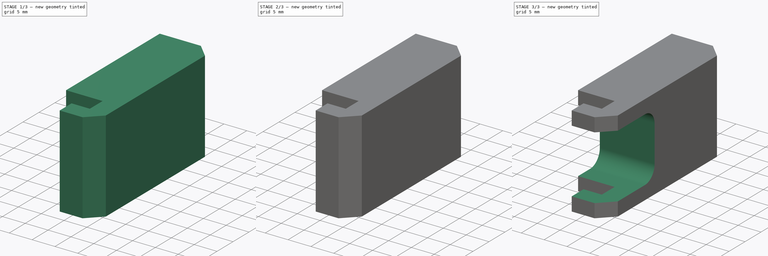
[diagram: build sequence overview — one tinted view per stage of 3, left to right]
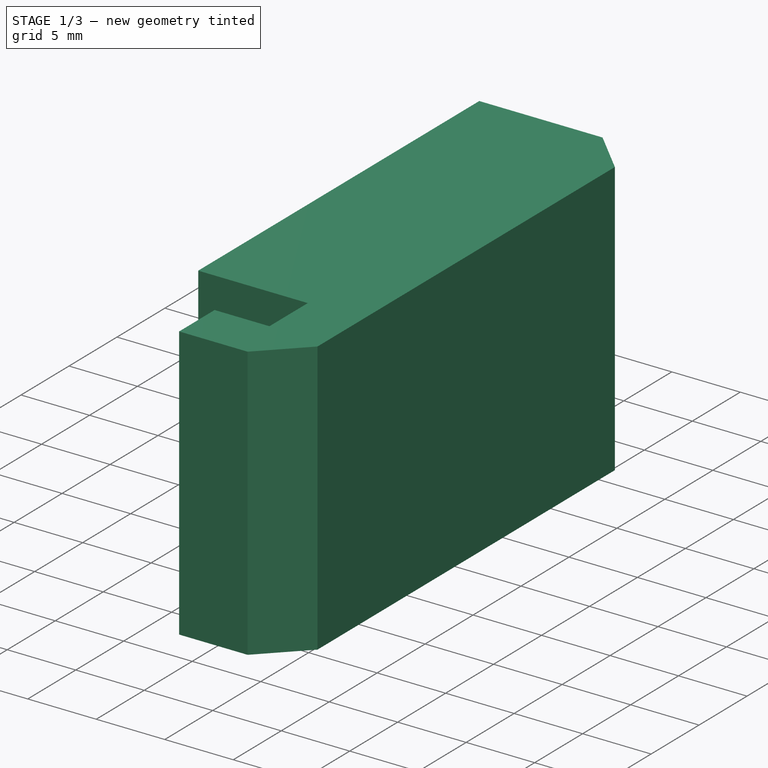
[diagram: stage 1 of 3 — iso view after this stage's code; geometry added in this stage tinted green]
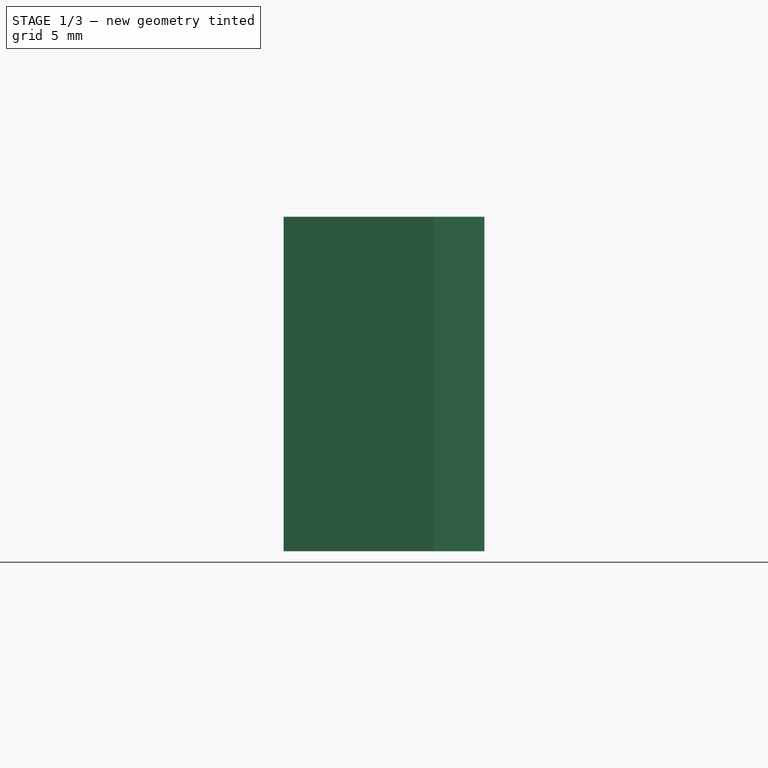
[diagram: stage 1 of 3 — front view after this stage's code; geometry added in this stage tinted green]
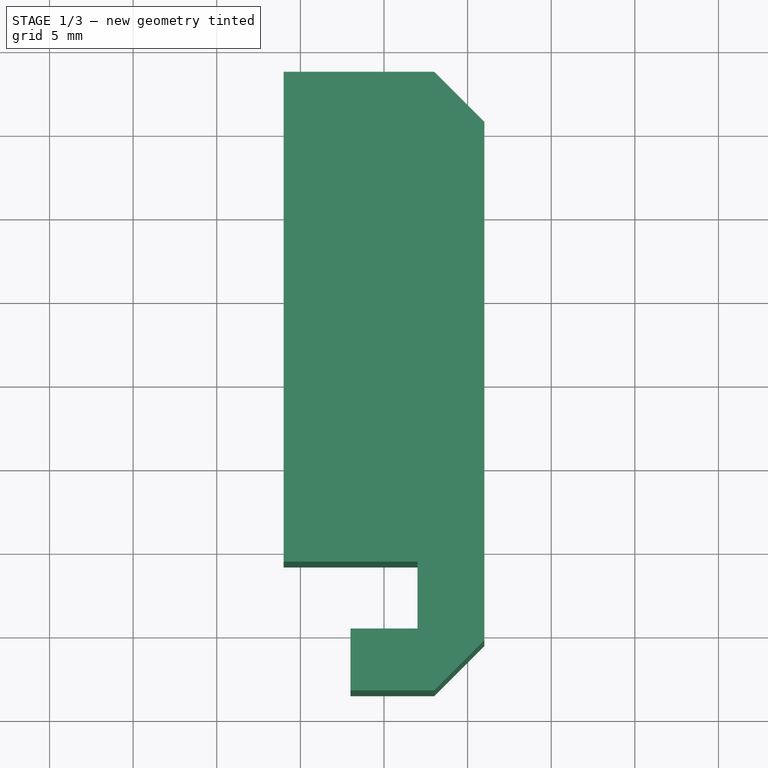
[diagram: stage 1 of 3 — top view after this stage's code; geometry added in this stage tinted green]
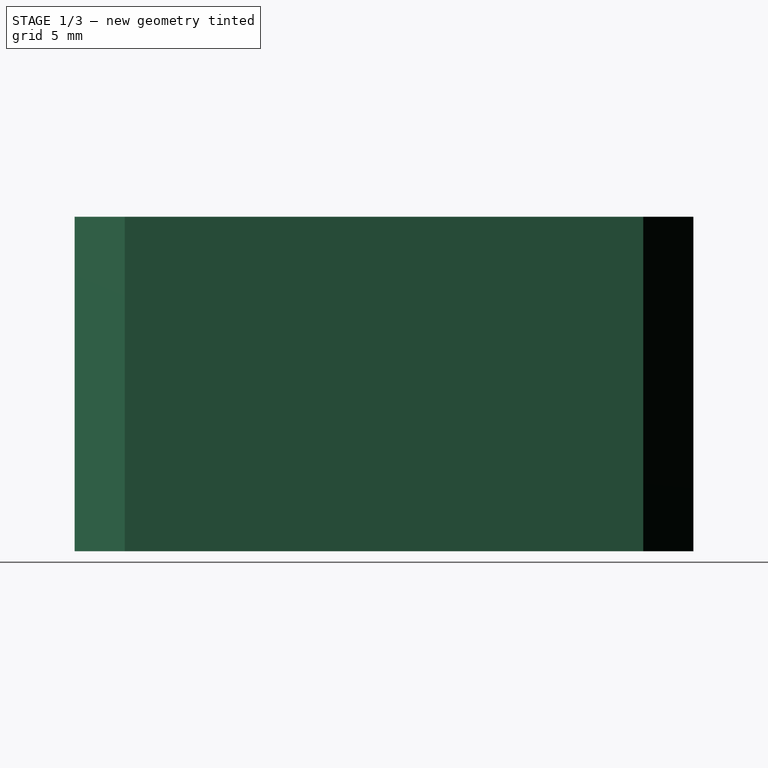
[diagram: stage 1 of 3 — right view after this stage's code; geometry added in this stage tinted green]
FCSTD DOCUMENT  (FreeCAD 0.14R3310 (Git))
Label: 73. SOPORTE RODAMIENTO IGUS 002
License: CC-BY 3.0
LicenseURL: http://creativecommons.org/licenses/by/3.0/
objects: Sketcher::SketchObject×3, PartDesign::Chamfer×2, PartDesign::Pocket×2, PartDesign::Pad×1, PartDesign::Fillet×1
note: 12 computed .brp shape members not serialized (recipe doc carries the construction recipe); baked Part::Feature solids carry a one-line shape summary decoded from their .brp

FEATURE [Sketcher::SketchObject] Sketch
  sketch-geometry (10):
    g0: LineSegment StartX=-6 StartY=18.5 StartZ=0 EndX=6 EndY=18.5 EndZ=0
    g1: LineSegment StartX=6 StartY=18.5 StartZ=0 EndX=6 EndY=-18.5 EndZ=0
    g2: LineSegment [constr] StartX=6 StartY=-18.5 StartZ=0 EndX=-6 EndY=-18.5 EndZ=0
    g3: LineSegment [constr] StartX=-6 StartY=-18.5 StartZ=0 EndX=-6 EndY=18.5 EndZ=0
    g4: LineSegment StartX=-6 StartY=18.5 StartZ=0 EndX=-6 EndY=-10.8 EndZ=0
    g5: LineSegment StartX=-6 StartY=-10.8 StartZ=0 EndX=2 EndY=-10.8 EndZ=0
    g6: LineSegment StartX=2 StartY=-10.8 StartZ=0 EndX=2 EndY=-14.8 EndZ=0
    g7: LineSegment StartX=2 StartY=-14.8 StartZ=0 EndX=-2 EndY=-14.8 EndZ=0
    g8: LineSegment StartX=-2 StartY=-14.8 StartZ=0 EndX=-2 EndY=-18.5 EndZ=0
    g9: LineSegment StartX=-2 StartY=-18.5 StartZ=0 EndX=6 EndY=-18.5 EndZ=0
  constraints (28):
    c: Coincident(g0,g1)
    c: Coincident(g1,g2)
    c: Coincident(g2,g3)
    c: Coincident(g3,g0)
    c: Horizontal(g0)
    c: Vertical(g1)
    c: Vertical(g3)
    c: Symmetric(g1,g0,g-1)
    c: Distance(g1) = 37
    c: Distance(g2) = 12
    c: Coincident(g4,g0)
    c: Vertical(g4)
    c: Distance(g4,g0) = 29.3
    c: Coincident(g5,g4)
    c: Horizontal(g5)
    c: Distance(g5) = 8
    c: Coincident(g6,g5)
    c: Vertical(g6)
    c: Distance(g6) = 4
    c: Coincident(g7,g6)
    c: Horizontal(g7)
    c: Distance(g7) = 4
    c: Coincident(g8,g7)
    c: PointOnObject(g8,g2)
    c: Vertical(g8)
    c: Coincident(g9,g8)
    c: Coincident(g9,g1)
    c: Horizontal(g9)
FEATURE [PartDesign::Pad] Pad
  Length = 20
  Length2 = 100
  Sketch = -> Sketch
  Type = 0
FEATURE [PartDesign::Chamfer] Chamfer
  Base = -> Pad [Edge5,Edge2]
  Size = 3
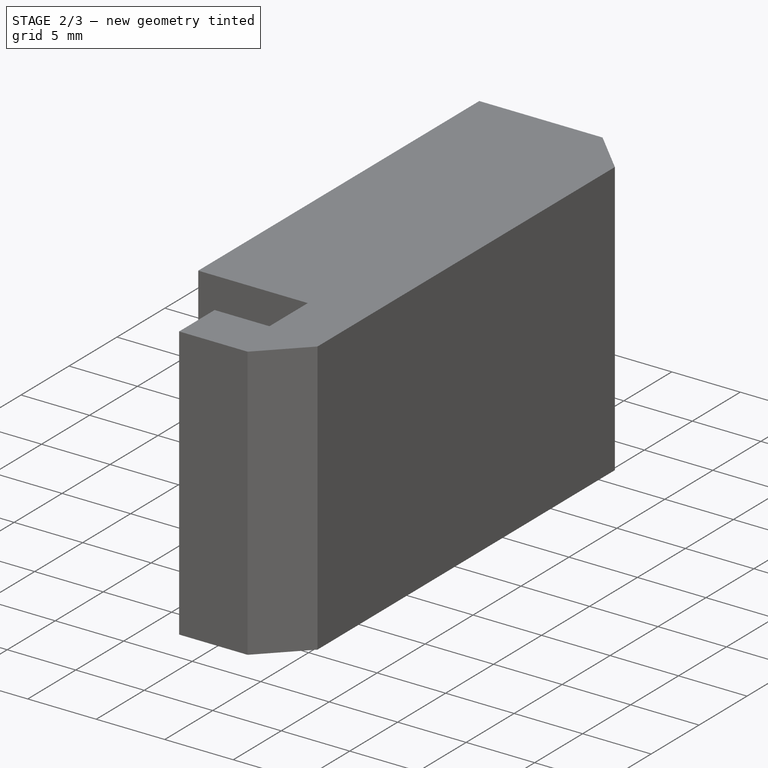
[diagram: stage 2 of 3 — iso view after this stage's code; geometry added in this stage tinted green]
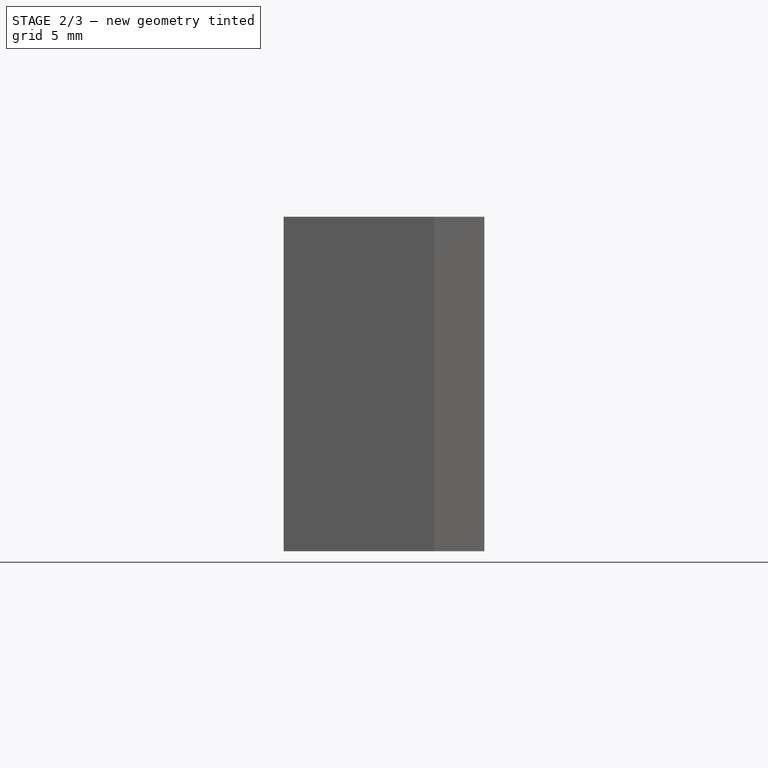
[diagram: stage 2 of 3 — front view after this stage's code; geometry added in this stage tinted green]
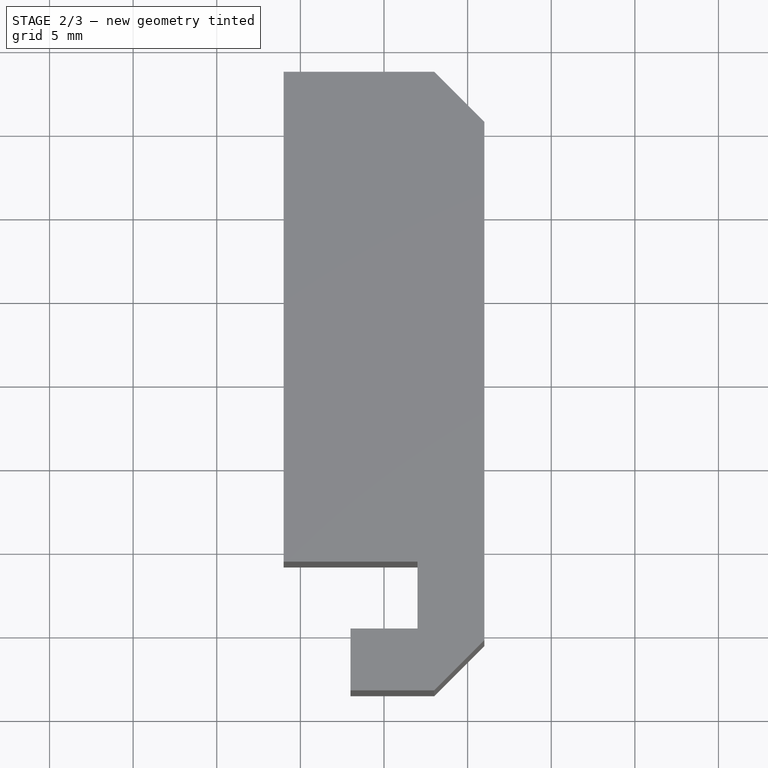
[diagram: stage 2 of 3 — top view after this stage's code; geometry added in this stage tinted green]
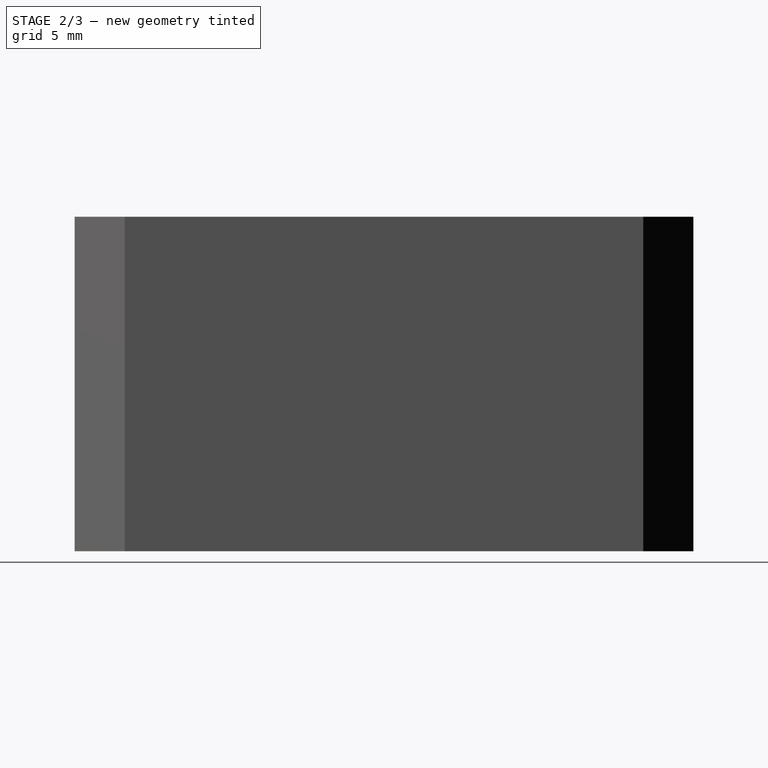
[diagram: stage 2 of 3 — right view after this stage's code; geometry added in this stage tinted green]
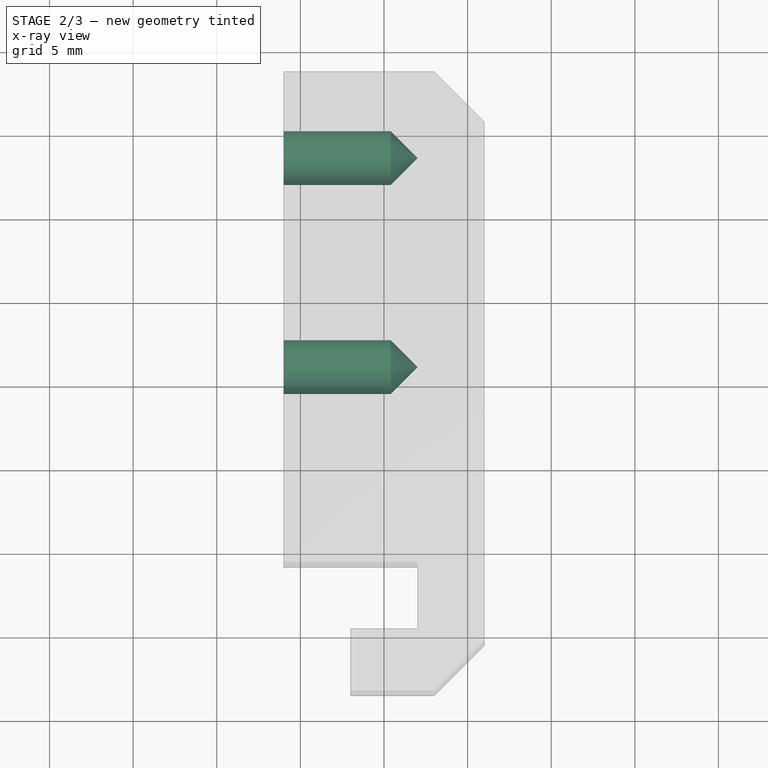
[diagram: stage 2 of 3 — x-ray composite at the top view; earlier geometry ghosted, this stage's added geometry solid]
FEATURE [Sketcher::SketchObject] Sketch001
  ExternalGeometry = -> [Chamfer]
  Placement = pos=(-6,0,0) rot=(0.57735,-0.57735,-0.57735;2.0944rad)
  Support = -> Chamfer [Face4]
  sketch-geometry (2):
    g0: Circle CenterX=-13.5 CenterY=10 CenterZ=0 NormalX=0 NormalY=0 NormalZ=1 Radius=1.62
    g1: Circle CenterX=-1 CenterY=10 CenterZ=0 NormalX=0 NormalY=0 NormalZ=1 Radius=1.62
  constraints (6):
    c: Equal(g0,g1)
    c: Radius(g1) = 1.62
    c: Distance(g1,g0) = 12.5
    c: DistanceY(g-1,g0) = 10
    c: DistanceY(g-1,g1) = 10
    c: Distance(g0,g-3) = 5
FEATURE [PartDesign::Pocket] Pocket
  Length = 8
  Sketch = -> Sketch001
  Type = 0
FEATURE [PartDesign::Chamfer] Chamfer001
  Base = -> Pocket [Edge34,Edge36]
  Size = 1.6
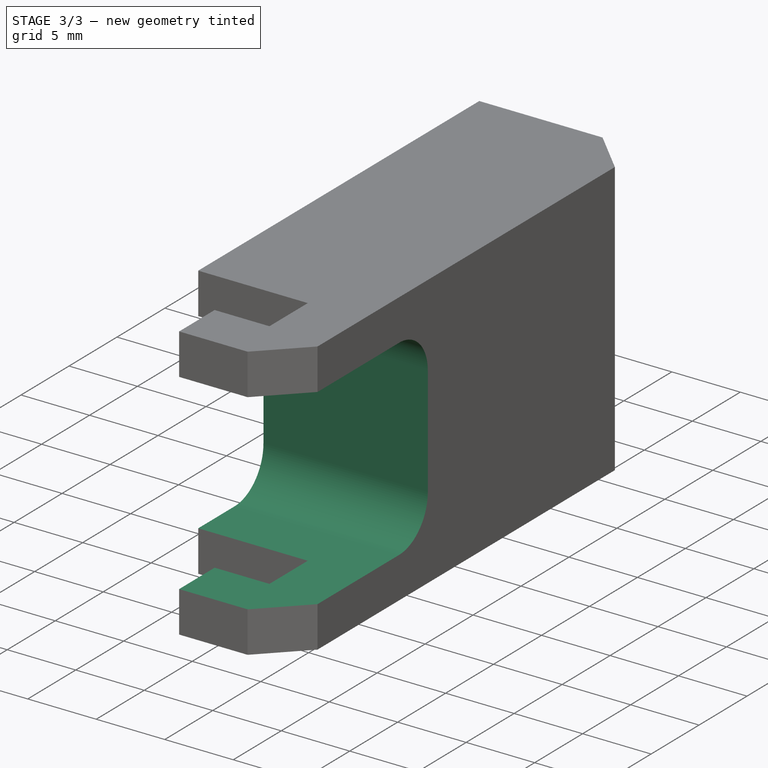
[diagram: stage 3 of 3 — iso view after this stage's code; geometry added in this stage tinted green]
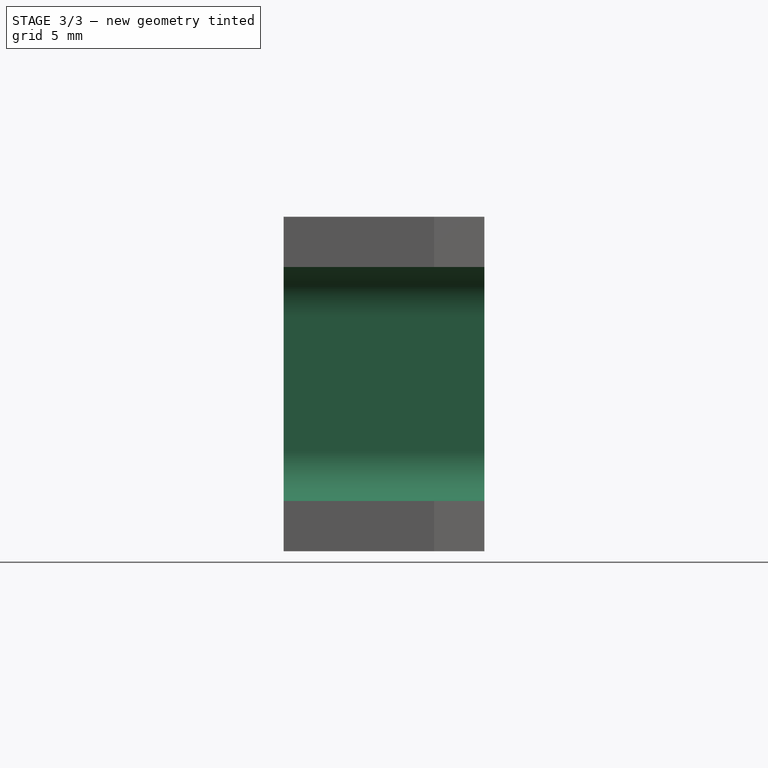
[diagram: stage 3 of 3 — front view after this stage's code; geometry added in this stage tinted green]
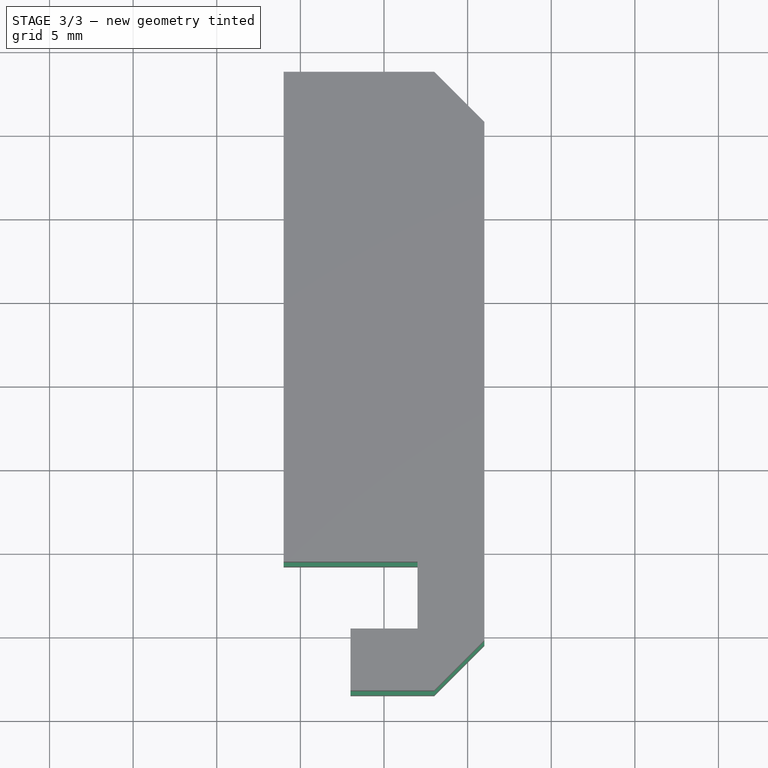
[diagram: stage 3 of 3 — top view after this stage's code; geometry added in this stage tinted green]
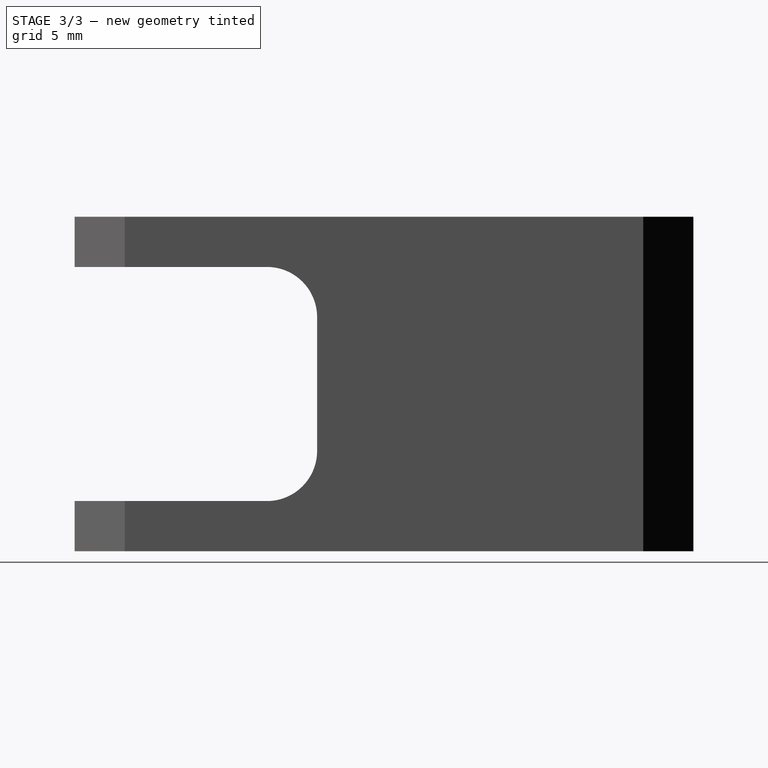
[diagram: stage 3 of 3 — right view after this stage's code; geometry added in this stage tinted green]
FEATURE [Sketcher::SketchObject] Sketch002
  ExternalGeometry = -> [Chamfer001]
  Placement = pos=(6,0,0) rot=(0.57735,0.57735,0.57735;2.0944rad)
  Support = -> Chamfer001 [Face11]
  sketch-geometry (4):
    g0: LineSegment StartX=-18.5 StartY=17 StartZ=0 EndX=-4 EndY=17 EndZ=0
    g1: LineSegment StartX=-4 StartY=17 StartZ=0 EndX=-4 EndY=3 EndZ=0
    g2: LineSegment StartX=-4 StartY=3 StartZ=0 EndX=-18.5 EndY=3 EndZ=0
    g3: LineSegment StartX=-18.5 StartY=3 StartZ=0 EndX=-18.5 EndY=17 EndZ=0
  constraints (12):
    c: Coincident(g0,g1)
    c: Coincident(g1,g2)
    c: Coincident(g2,g3)
    c: Coincident(g3,g0)
    c: Horizontal(g0)
    c: Horizontal(g2)
    c: Vertical(g1)
    c: Vertical(g3)
    c: PointOnObject(g0,g-3)
    c: Distance(g0) = 14.5
    c: Distance(g1) = 14
    c: DistanceY(g-1,g1) = 3
FEATURE [PartDesign::Pocket] Pocket001
  Length = 5
  Sketch = -> Sketch002
  Type = 1
FEATURE [PartDesign::Fillet] Fillet
  Base = -> Pocket001 [Edge34,Edge32]
  Radius = 3
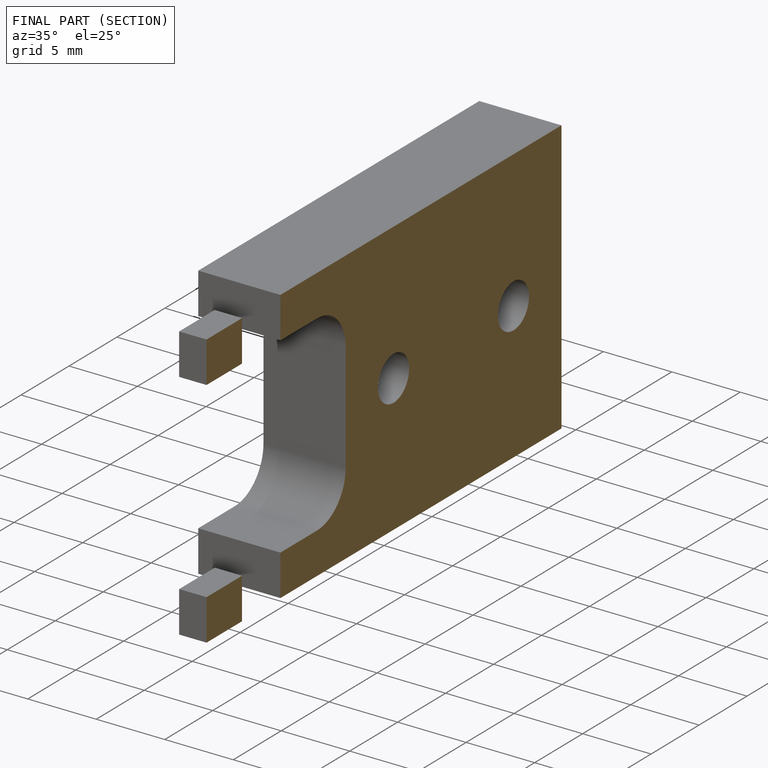
[diagram: finished part — half-section view (interior)]
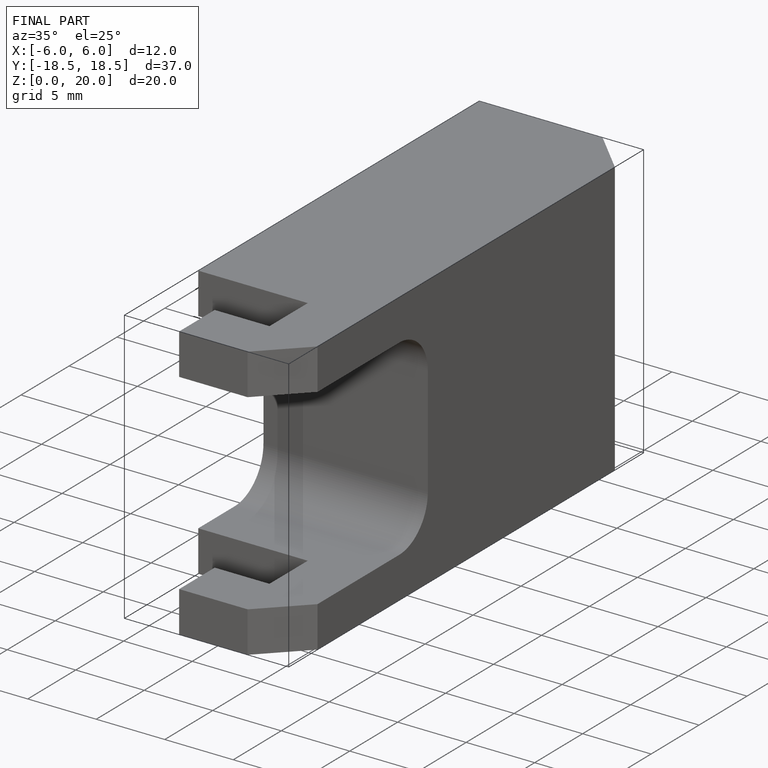
[diagram: finished part — iso view with bounding-box wireframe]
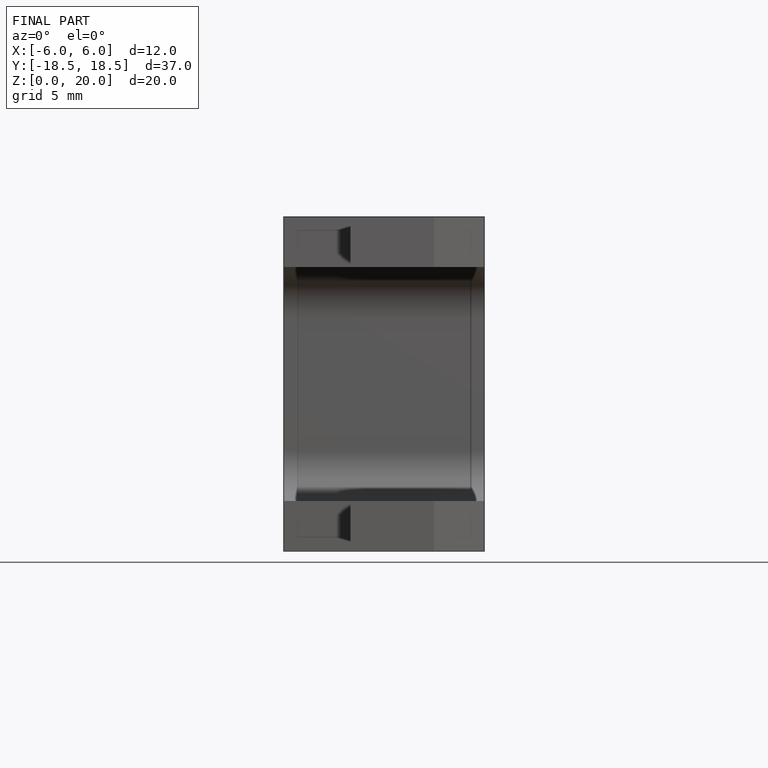
[diagram: finished part — front view with bounding-box wireframe]
